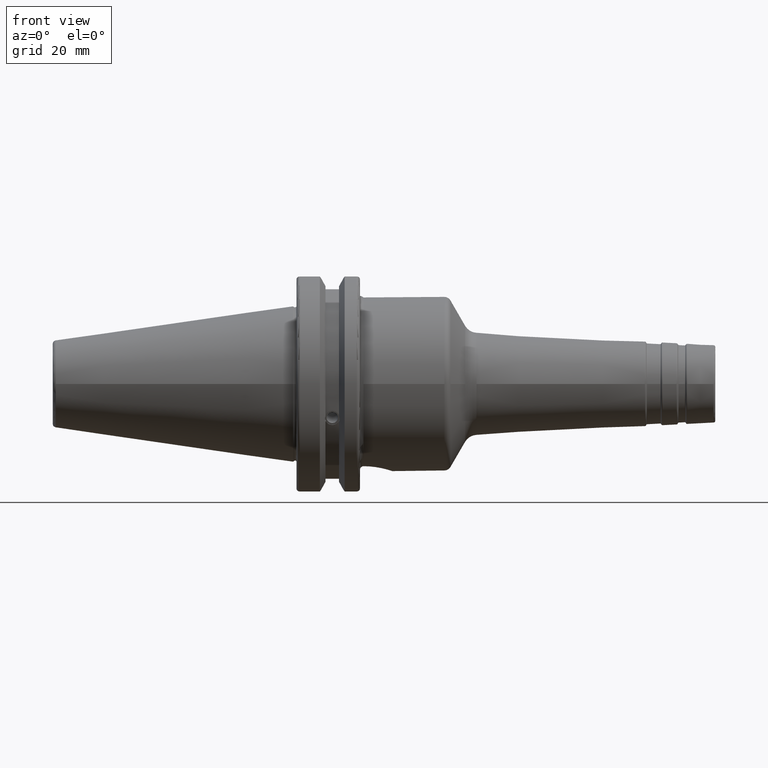
[diagram: clean part render]
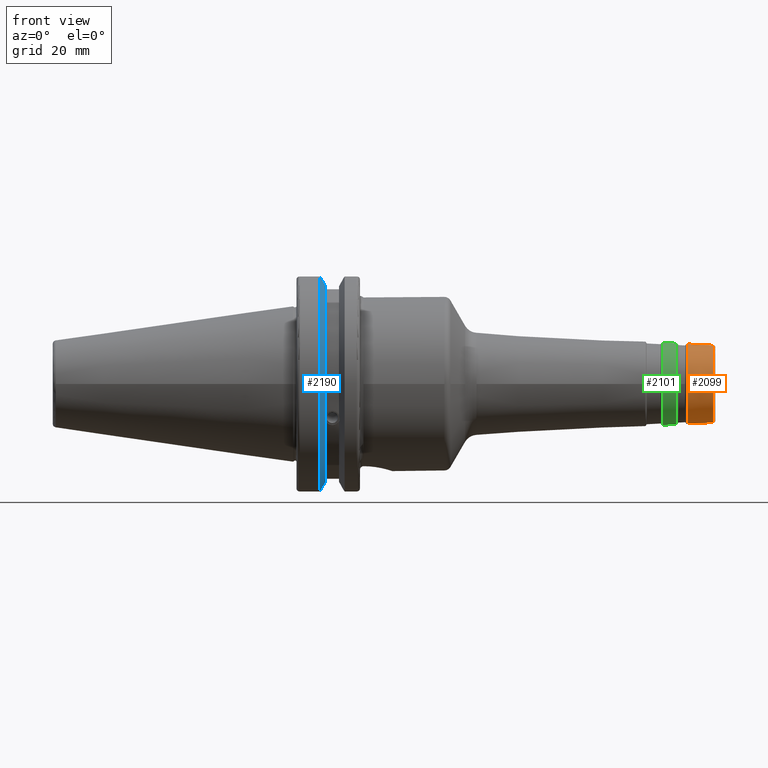
[diagram: same view with three faces highlighted in distinct colors, each labeled with its STEP entity id]
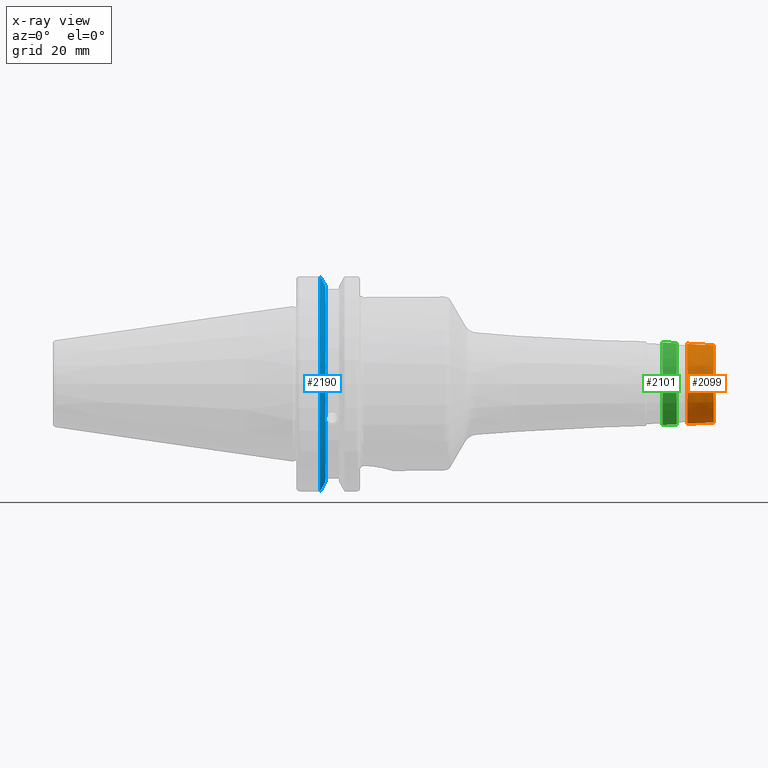
[diagram: x-ray of the same camera — body ghosted, the three highlighted faces saturated]
A machine part, front view with three faces highlighted in distinct colors.
The next image is the same camera in x-ray (body ghosted, the three faces saturated) — at least one of them is partly hidden behind the body in this view.
Their STEP definitions:

[orange] entity #2099 — the highlighted conical surface has half-angle 3 deg.
#174=LINE('',#3332,#269);
#269=VECTOR('',#2644,11.2144933145358);
#364=CONICAL_SURFACE('',#2271,11.2144933145358,0.0523598775598303);
#393=FACE_OUTER_BOUND('',#501,.T.);
#501=EDGE_LOOP('',(#1468,#1469,#1470,#1471,#1472,#1473,#1474,#1475));
#653=CIRCLE('',#2267,11.4169001577015);
#654=CIRCLE('',#2268,11.4169001577015);
#656=CIRCLE('',#2270,11.4169001577015);
#657=CIRCLE('',#2272,11.0248324840198);
#658=CIRCLE('',#2273,11.0248324840198);
#659=CIRCLE('',#2274,11.0248324840198);
#827=VERTEX_POINT('',#3319);
#828=VERTEX_POINT('',#3320);
#829=VERTEX_POINT('',#3322);
#830=VERTEX_POINT('',#3327);
#831=VERTEX_POINT('',#3328);
#832=VERTEX_POINT('',#3330);
#1081=EDGE_CURVE('',#827,#828,#653,.T.);
#1082=EDGE_CURVE('',#828,#829,#654,.T.);
#1084=EDGE_CURVE('',#829,#827,#656,.T.);
#1085=EDGE_CURVE('',#830,#831,#657,.T.);
#1086=EDGE_CURVE('',#832,#830,#658,.T.);
#1087=EDGE_CURVE('',#832,#828,#174,.T.);
#1088=EDGE_CURVE('',#831,#832,#659,.T.);
#1468=ORIENTED_EDGE('',*,*,#1085,.F.);
#1469=ORIENTED_EDGE('',*,*,#1086,.F.);
#1470=ORIENTED_EDGE('',*,*,#1087,.T.);
#1471=ORIENTED_EDGE('',*,*,#1081,.F.);
#1472=ORIENTED_EDGE('',*,*,#1084,.F.);
#1473=ORIENTED_EDGE('',*,*,#1082,.F.);
#1474=ORIENTED_EDGE('',*,*,#1087,.F.);
#1475=ORIENTED_EDGE('',*,*,#1088,.F.);
#2099=ADVANCED_FACE('',(#393),#364,.T.);
#2267=AXIS2_PLACEMENT_3D('',#3321,#2630,#2631);
#2268=AXIS2_PLACEMENT_3D('',#3323,#2632,#2633);
#2270=AXIS2_PLACEMENT_3D('',#3325,#2636,#2637);
#2271=AXIS2_PLACEMENT_3D('',#3326,#2638,#2639);
#2272=AXIS2_PLACEMENT_3D('',#3329,#2640,#2641);
#2273=AXIS2_PLACEMENT_3D('',#3331,#2642,#2643);
#2274=AXIS2_PLACEMENT_3D('',#3333,#2645,#2646);
#2630=DIRECTION('center_axis',(-1.,0.,0.));
#2631=DIRECTION('ref_axis',(0.,-1.,3.06161699786838E-17));
#2632=DIRECTION('center_axis',(-1.,0.,0.));
#2633=DIRECTION('ref_axis',(0.,-1.,3.06161699786838E-17));
#2636=DIRECTION('center_axis',(-1.,0.,0.));
#2637=DIRECTION('ref_axis',(0.,-1.,3.06161699786838E-17));
#2638=DIRECTION('center_axis',(-1.,0.,0.));
#2639=DIRECTION('ref_axis',(0.,1.,0.));
#2640=DIRECTION('center_axis',(1.,0.,0.));
#2641=DIRECTION('ref_axis',(0.,-1.,3.06161699786838E-17));
#2642=DIRECTION('center_axis',(1.,0.,0.));
#2643=DIRECTION('ref_axis',(0.,-1.,3.06161699786838E-17));
#2644=DIRECTION('',(-0.998629534754574,-0.0523359562429443,-6.40930612932376E-18));
#2645=DIRECTION('center_axis',(1.,0.,0.));
#2646=DIRECTION('ref_axis',(0.,-1.,3.06161699786838E-17));
#3319=CARTESIAN_POINT('',(112.045071105762,11.4169001577015,-3.49541755857852E-15));
#3320=CARTESIAN_POINT('',(112.045071105762,-11.4169001577015,-1.39816702343141E-15));
#3321=CARTESIAN_POINT('Origin',(112.045071105762,0.,-1.74770877928926E-15));
#3322=CARTESIAN_POINT('',(112.045071105762,-1.39816702343141E-15,11.4169001577015));
#3323=CARTESIAN_POINT('Origin',(112.045071105762,0.,-1.74770877928926E-15));
#3325=CARTESIAN_POINT('Origin',(112.045071105762,0.,-1.74770877928926E-15));
#3326=CARTESIAN_POINT('Origin',(115.907223746739,0.,0.));
#3327=CARTESIAN_POINT('',(119.526167978121,11.0248324840198,-6.75076290634533E-16));
#3328=CARTESIAN_POINT('',(119.526167978121,-1.35015258126907E-15,11.0248324840198));
#3329=CARTESIAN_POINT('Origin',(119.526167978121,0.,-1.68769072658633E-15));
#3330=CARTESIAN_POINT('',(119.526167978121,-11.0248324840198,-1.35015258126907E-15));
#3331=CARTESIAN_POINT('Origin',(119.526167978121,0.,-1.68769072658633E-15));
#3332=CARTESIAN_POINT('',(115.907223746739,-11.2144933145358,-1.37337933417057E-15));
#3333=CARTESIAN_POINT('Origin',(119.526167978121,0.,-1.68769072658633E-15));

[blue] entity #2190 — the highlighted conical surface has half-angle 60 deg.
#25=(
BOUNDED_CURVE()
B_SPLINE_CURVE(2,(#4088,#4089,#4090),.UNSPECIFIED.,.F.,.F.)
B_SPLINE_CURVE_WITH_KNOTS((3,3),(0.,0.27654914279601),.UNSPECIFIED.)
CURVE()
GEOMETRIC_REPRESENTATION_ITEM()
RATIONAL_B_SPLINE_CURVE((1.,1.00095203903532,1.00031614444885))
REPRESENTATION_ITEM('')
);
#26=(
BOUNDED_CURVE()
B_SPLINE_CURVE(2,(#4100,#4101,#4102),.UNSPECIFIED.,.F.,.F.)
B_SPLINE_CURVE_WITH_KNOTS((3,3),(0.0550586467392668,0.331607789535851),
 .UNSPECIFIED.)
CURVE()
GEOMETRIC_REPRESENTATION_ITEM()
RATIONAL_B_SPLINE_CURVE((1.0003161444496,1.00095203903759,1.))
REPRESENTATION_ITEM('')
);
#27=(
BOUNDED_CURVE()
B_SPLINE_CURVE(2,(#4150,#4151,#4152),.UNSPECIFIED.,.F.,.F.)
B_SPLINE_CURVE_WITH_KNOTS((3,3),(0.,0.0639048713675873),.UNSPECIFIED.)
CURVE()
GEOMETRIC_REPRESENTATION_ITEM()
RATIONAL_B_SPLINE_CURVE((1.,1.00028444218292,1.00047644010589))
REPRESENTATION_ITEM('')
);
#28=(
BOUNDED_CURVE()
B_SPLINE_CURVE(2,(#4211,#4212,#4213),.UNSPECIFIED.,.F.,.F.)
B_SPLINE_CURVE_WITH_KNOTS((3,3),(0.329353533631225,0.393258405001025),
 .UNSPECIFIED.)
CURVE()
GEOMETRIC_REPRESENTATION_ITEM()
RATIONAL_B_SPLINE_CURVE((1.00047644010574,1.00028444218284,1.))
REPRESENTATION_ITEM('')
);
#93=B_SPLINE_CURVE_WITH_KNOTS('',3,(#3689,#3690,#3691,#3692,#3693,#3694,
#3695,#3696,#3697,#3698,#3699,#3700,#3701,#3702),.UNSPECIFIED.,.F.,.F.,
(4,2,2,2,2,2,4),(0.451995700189025,0.464547828547661,0.504528771685166,
0.544509714822671,0.584490657960176,0.624471601097681,0.637023729456317),
 .UNSPECIFIED.);
#381=CONICAL_SURFACE('',#2509,30.3546886482472,1.0471975511966);
#484=FACE_OUTER_BOUND('',#606,.T.);
#606=EDGE_LOOP('',(#2041,#2042,#2043,#2044,#2045,#2046,#2047,#2048));
#729=CIRCLE('',#2390,28.9593772964944);
#785=CIRCLE('',#2508,31.75);
#786=CIRCLE('',#2510,28.9593772964944);
#908=VERTEX_POINT('',#3686);
#909=VERTEX_POINT('',#3688);
#928=VERTEX_POINT('',#3785);
#987=VERTEX_POINT('',#4085);
#988=VERTEX_POINT('',#4087);
#991=VERTEX_POINT('',#4099);
#1001=VERTEX_POINT('',#4148);
#1014=VERTEX_POINT('',#4210);
#1190=EDGE_CURVE('',#909,#908,#93,.T.);
#1216=EDGE_CURVE('',#909,#928,#729,.T.);
#1296=EDGE_CURVE('',#988,#987,#25,.T.);
#1302=EDGE_CURVE('',#991,#928,#26,.T.);
#1318=EDGE_CURVE('',#1001,#987,#27,.T.);
#1337=EDGE_CURVE('',#991,#1014,#28,.T.);
#1373=EDGE_CURVE('',#1001,#1014,#785,.T.);
#1374=EDGE_CURVE('',#988,#908,#786,.T.);
#2041=ORIENTED_EDGE('',*,*,#1190,.T.);
#2042=ORIENTED_EDGE('',*,*,#1374,.F.);
#2043=ORIENTED_EDGE('',*,*,#1296,.T.);
#2044=ORIENTED_EDGE('',*,*,#1318,.F.);
#2045=ORIENTED_EDGE('',*,*,#1373,.T.);
#2046=ORIENTED_EDGE('',*,*,#1337,.F.);
#2047=ORIENTED_EDGE('',*,*,#1302,.T.);
#2048=ORIENTED_EDGE('',*,*,#1216,.F.);
#2190=ADVANCED_FACE('',(#484),#381,.T.);
#2390=AXIS2_PLACEMENT_3D('',#3786,#2908,#2909);
#2508=AXIS2_PLACEMENT_3D('',#4296,#3200,#3201);
#2509=AXIS2_PLACEMENT_3D('',#4297,#3202,#3203);
#2510=AXIS2_PLACEMENT_3D('',#4298,#3204,#3205);
#2908=DIRECTION('center_axis',(1.,0.,0.));
#2909=DIRECTION('ref_axis',(0.,0.,-1.));
#3200=DIRECTION('center_axis',(1.,0.,0.));
#3201=DIRECTION('ref_axis',(0.,0.,-1.));
#3202=DIRECTION('center_axis',(-1.,0.,0.));
#3203=DIRECTION('ref_axis',(0.,-1.,-1.22464679914735E-16));
#3204=DIRECTION('center_axis',(1.,0.,0.));
#3205=DIRECTION('ref_axis',(0.,0.,-1.));
#3686=CARTESIAN_POINT('',(9.261,-27.4956274489925,-9.09043478536247));
#3688=CARTESIAN_POINT('',(9.261,-26.9060914640648,-10.7101715919071));
#3689=CARTESIAN_POINT('Ctrl Pts',(9.26099999999999,-26.9060914640648,-10.7101715919071));
#3690=CARTESIAN_POINT('Ctrl Pts',(9.24687959280038,-26.9406927482839,-10.6893765730703));
#3691=CARTESIAN_POINT('Ctrl Pts',(9.23340701821433,-26.9744191989197,-10.6676007180673));
#3692=CARTESIAN_POINT('Ctrl Pts',(9.18001855884095,-27.1113422433189,-10.5723885976054));
#3693=CARTESIAN_POINT('Ctrl Pts',(9.14188029158246,-27.2180531796526,-10.4801333026531));
#3694=CARTESIAN_POINT('Ctrl Pts',(9.08968935539424,-27.3968610665578,-10.2639559818059));
#3695=CARTESIAN_POINT('Ctrl Pts',(9.076,-27.4684373304961,-10.139516340139));
#3696=CARTESIAN_POINT('Ctrl Pts',(9.076,-27.559599249844,-9.8890510252165));
#3697=CARTESIAN_POINT('Ctrl Pts',(9.08968935539424,-27.5847569104122,-9.74771639360671));
#3698=CARTESIAN_POINT('Ctrl Pts',(9.14188029158246,-27.5867382255984,-9.46717946402648));
#3699=CARTESIAN_POINT('Ctrl Pts',(9.18001855884095,-27.5642934663232,-9.32791534028656));
#3700=CARTESIAN_POINT('Ctrl Pts',(9.23340701821433,-27.5206055003512,-9.16696618806878));
#3701=CARTESIAN_POINT('Ctrl Pts',(9.24687959280038,-27.5087667900418,-9.12860597076218));
#3702=CARTESIAN_POINT('Ctrl Pts',(9.261,-27.4956274489925,-9.09043478536247));
#3785=CARTESIAN_POINT('',(9.261,-8.19,-27.7771386827498));
#3786=CARTESIAN_POINT('Origin',(9.261,0.,0.));
#4085=CARTESIAN_POINT('',(7.92858530351256,-8.19,30.1755016258903));
#4087=CARTESIAN_POINT('',(9.261,-8.19,27.7771386827498));
#4088=CARTESIAN_POINT('Ctrl Pts',(9.261,-8.19,27.7771386827498));
#4089=CARTESIAN_POINT('Ctrl Pts',(8.62236356152083,-8.19,28.930368953976));
#4090=CARTESIAN_POINT('Ctrl Pts',(7.92858530351256,-8.19,30.1755016258903));
#4099=CARTESIAN_POINT('',(7.92858530351256,-8.19,-30.1755016258903));
#4100=CARTESIAN_POINT('Ctrl Pts',(7.92858530351256,-8.19,-30.1755016258903));
#4101=CARTESIAN_POINT('Ctrl Pts',(8.62236356152658,-8.19,-28.9303689539657));
#4102=CARTESIAN_POINT('Ctrl Pts',(9.261,-8.19,-27.7771386827498));
#4148=CARTESIAN_POINT('',(7.64983323092436,-8.67204822802685,30.5427254764662));
#4150=CARTESIAN_POINT('Ctrl Pts',(7.64983323092436,-8.67204822802685,30.5427254764662));
#4151=CARTESIAN_POINT('Ctrl Pts',(7.79089148121629,-8.42917748262643,30.357706789263));
#4152=CARTESIAN_POINT('Ctrl Pts',(7.92858530351256,-8.19,30.1755016258903));
#4210=CARTESIAN_POINT('',(7.64983323092436,-8.67204822802685,-30.5427254764662));
#4211=CARTESIAN_POINT('Ctrl Pts',(7.92858530351256,-8.19,-30.1755016258903));
#4212=CARTESIAN_POINT('Ctrl Pts',(7.7908914812116,-8.42917748263465,-30.3577067892692));
#4213=CARTESIAN_POINT('Ctrl Pts',(7.64983323092436,-8.67204822802686,-30.5427254764662));
#4296=CARTESIAN_POINT('Origin',(7.64983323092436,0.,0.));
#4297=CARTESIAN_POINT('Origin',(8.45541661546218,0.,0.));
#4298=CARTESIAN_POINT('Origin',(9.261,0.,0.));

[green] entity #2101 — the highlighted conical surface has half-angle 3 deg.
#175=LINE('',#3344,#270);
#270=VECTOR('',#2659,11.6796065213774);
#365=CONICAL_SURFACE('',#2280,11.6796065213774,0.0523598775598298);
#395=FACE_OUTER_BOUND('',#503,.T.);
#503=EDGE_LOOP('',(#1484,#1485,#1486,#1487,#1488,#1489,#1490,#1491));
#661=CIRCLE('',#2277,11.5759611913527);
#662=CIRCLE('',#2278,11.5759611913527);
#663=CIRCLE('',#2279,11.5759611913527);
#664=CIRCLE('',#2281,11.7832518514021);
#665=CIRCLE('',#2282,11.7832518514021);
#666=CIRCLE('',#2283,11.7832518514021);
#833=VERTEX_POINT('',#3335);
#834=VERTEX_POINT('',#3337);
#835=VERTEX_POINT('',#3339);
#836=VERTEX_POINT('',#3343);
#837=VERTEX_POINT('',#3345);
#838=VERTEX_POINT('',#3347);
#1090=EDGE_CURVE('',#833,#834,#661,.T.);
#1091=EDGE_CURVE('',#834,#835,#662,.T.);
#1092=EDGE_CURVE('',#835,#833,#663,.T.);
#1093=EDGE_CURVE('',#834,#836,#175,.T.);
#1094=EDGE_CURVE('',#837,#836,#664,.T.);
#1095=EDGE_CURVE('',#838,#837,#665,.T.);
#1096=EDGE_CURVE('',#836,#838,#666,.T.);
#1484=ORIENTED_EDGE('',*,*,#1092,.F.);
#1485=ORIENTED_EDGE('',*,*,#1091,.F.);
#1486=ORIENTED_EDGE('',*,*,#1093,.T.);
#1487=ORIENTED_EDGE('',*,*,#1094,.F.);
#1488=ORIENTED_EDGE('',*,*,#1095,.F.);
#1489=ORIENTED_EDGE('',*,*,#1096,.F.);
#1490=ORIENTED_EDGE('',*,*,#1093,.F.);
#1491=ORIENTED_EDGE('',*,*,#1090,.F.);
#2101=ADVANCED_FACE('',(#395),#365,.T.);
#2277=AXIS2_PLACEMENT_3D('',#3338,#2651,#2652);
#2278=AXIS2_PLACEMENT_3D('',#3340,#2653,#2654);
#2279=AXIS2_PLACEMENT_3D('',#3341,#2655,#2656);
#2280=AXIS2_PLACEMENT_3D('',#3342,#2657,#2658);
#2281=AXIS2_PLACEMENT_3D('',#3346,#2660,#2661);
#2282=AXIS2_PLACEMENT_3D('',#3348,#2662,#2663);
#2283=AXIS2_PLACEMENT_3D('',#3349,#2664,#2665);
#2651=DIRECTION('center_axis',(1.,0.,0.));
#2652=DIRECTION('ref_axis',(0.,-1.,3.06161699786838E-17));
#2653=DIRECTION('center_axis',(1.,0.,0.));
#2654=DIRECTION('ref_axis',(0.,-1.,3.06161699786838E-17));
#2655=DIRECTION('center_axis',(1.,0.,0.));
#2656=DIRECTION('ref_axis',(0.,-1.,3.06161699786838E-17));
#2657=DIRECTION('center_axis',(-1.,0.,0.));
#2658=DIRECTION('ref_axis',(0.,1.,0.));
#2659=DIRECTION('',(-0.998629534754574,-0.0523359562429437,-6.4093061293237E-18));
#2660=DIRECTION('center_axis',(-1.,0.,0.));
#2661=DIRECTION('ref_axis',(0.,-1.,3.06161699786838E-17));
#2662=DIRECTION('center_axis',(-1.,0.,0.));
#2663=DIRECTION('ref_axis',(0.,-1.,3.06161699786838E-17));
#2664=DIRECTION('center_axis',(-1.,0.,0.));
#2665=DIRECTION('ref_axis',(0.,-1.,3.06161699786838E-17));
#3335=CARTESIAN_POINT('',(109.010005780972,-1.41764638200441E-15,11.5759611913527));
#3337=CARTESIAN_POINT('',(109.010005780972,-11.5759611913527,-1.41764638200441E-15));
#3338=CARTESIAN_POINT('Origin',(109.010005780972,0.,-1.77205797750551E-15));
#3339=CARTESIAN_POINT('',(109.010005780972,11.5759611913527,-7.08823191002204E-16));
#3340=CARTESIAN_POINT('Origin',(109.010005780972,0.,-1.77205797750551E-15));
#3341=CARTESIAN_POINT('Origin',(109.010005780972,0.,-1.77205797750551E-15));
#3342=CARTESIAN_POINT('Origin',(107.032335071726,0.,0.));
#3343=CARTESIAN_POINT('',(105.05466436248,-11.7832518514021,-1.44303216633668E-15));
#3344=CARTESIAN_POINT('',(107.032335071726,-11.6796065213774,-1.43033927417054E-15));
#3345=CARTESIAN_POINT('',(105.05466436248,11.7832518514021,-3.60758041584169E-15));
#3346=CARTESIAN_POINT('Origin',(105.05466436248,0.,-1.80379020792084E-15));
#3347=CARTESIAN_POINT('',(105.05466436248,-1.44303216633668E-15,11.7832518514021));
#3348=CARTESIAN_POINT('Origin',(105.05466436248,0.,-1.80379020792084E-15));
#3349=CARTESIAN_POINT('Origin',(105.05466436248,0.,-1.80379020792084E-15));